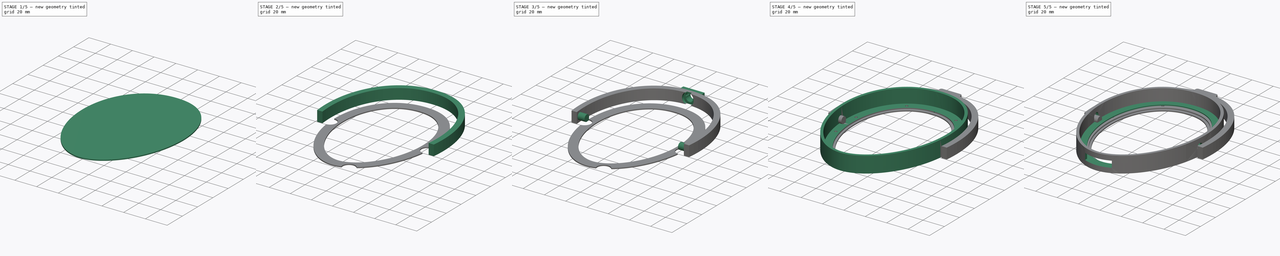
[diagram: build sequence overview — one tinted view per stage of 5, left to right]
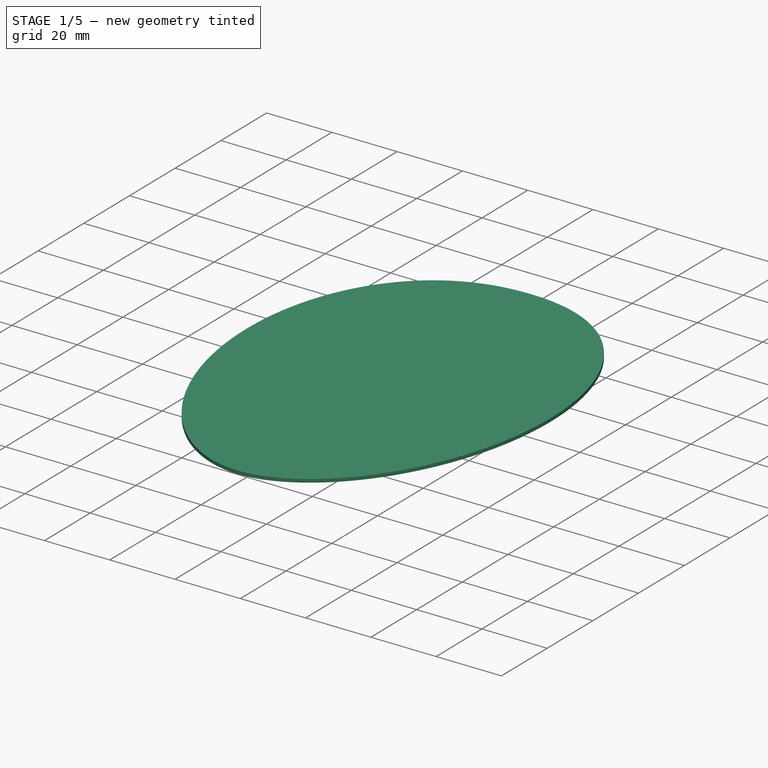
[diagram: stage 1 of 5 — iso view after this stage's code; geometry added in this stage tinted green]
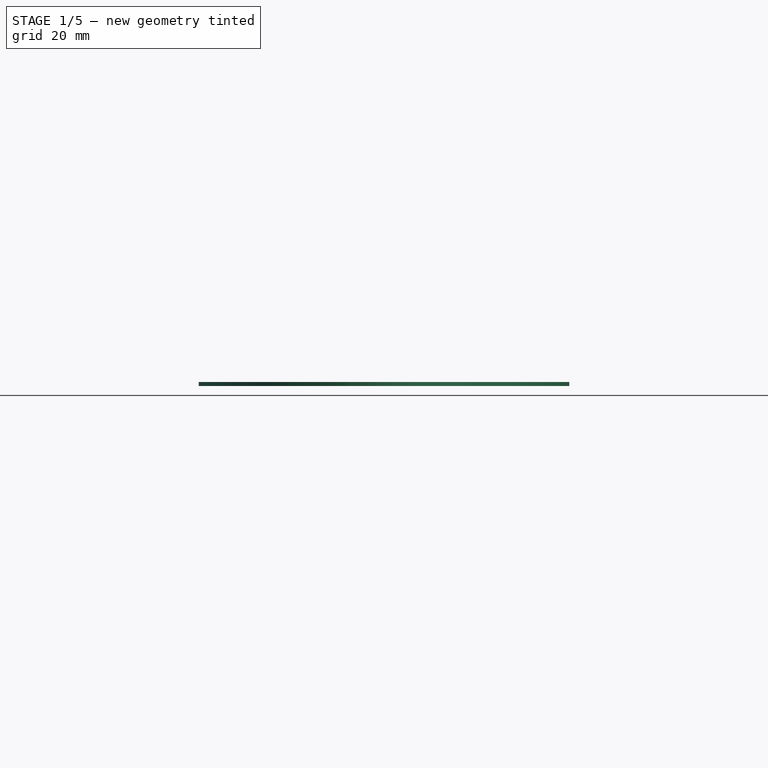
[diagram: stage 1 of 5 — front view after this stage's code; geometry added in this stage tinted green]
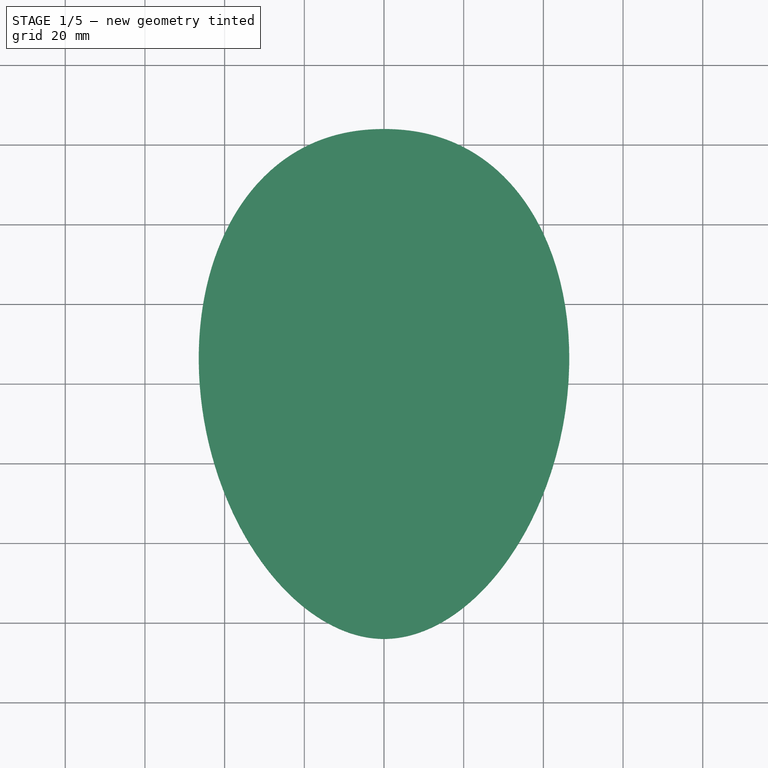
[diagram: stage 1 of 5 — top view after this stage's code; geometry added in this stage tinted green]
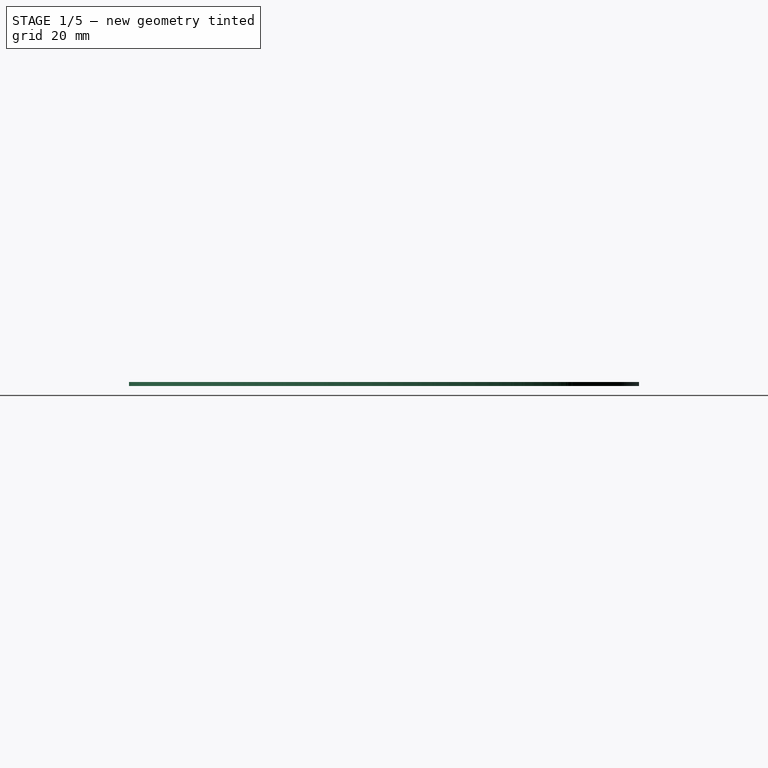
[diagram: stage 1 of 5 — right view after this stage's code; geometry added in this stage tinted green]
FCSTD DOCUMENT  (FreeCAD 1.0R39285 (Git))
Label: jade-ii
License: All rights reserved
LicenseURL: https://en.wikipedia.org/wiki/All_rights_reserved
objects: Sketcher::SketchObject×21, PartDesign::Pocket×11, PartDesign::Pad×7, PartDesign::Body×5, PartDesign::Plane×3, App::Link×2, PartDesign::Hole×2, PartDesign::Fillet×1
note: 113 computed .brp shape members not serialized (recipe doc carries the construction recipe); baked Part::Feature solids carry a one-line shape summary decoded from their .brp

FEATURE [PartDesign::Body] Body002  label="Earpad Mount"
  AllowCompound = false
  Group = -> [Sketch008,Pad003,Sketch009,Pocket004]
  Origin = -> Origin002
  Placement = pos=(0,0,11) rot=(0,0,1;0rad)
  Tip = -> Pocket004
FEATURE [Sketcher::SketchObject] Sketch010
  ArcFitTolerance = 1e-06
  AttachmentSupport = -> [XY_Plane003]
  FullyConstrained = false
  MakeInternals = false
  MapMode = 5
  sketch-geometry (19):
    g0: BSplineCurve PolesCount=11 KnotsCount=3 Degree=5 IsPeriodic=0
    g1: LineSegment [constr] StartX=-2.09149e-05 StartY=-64 StartZ=0 EndX=2.09149e-05 EndY=64 EndZ=0
    g2: LineSegment [constr] StartX=46.5 StartY=-1.5196e-05 StartZ=0 EndX=-46.5 EndY=1.5196e-05 EndZ=0
    g3: GeomPoint [constr] X=-1.43706e-05 Y=-43.9744 Z=0
    g4: GeomPoint [constr] X=1.43706e-05 Y=43.9744 Z=0
    g5-g11: Circle [constr] x7 (B-spline internal-alignment scaffolding for g0; pole/knot coordinates omitted)
    g12: GeomPoint [constr] X=-2.09149e-05 Y=-64 Z=0
    g13: GeomPoint [constr] X=2.09149e-05 Y=64 Z=0
    g14: GeomPoint [constr] X=-2.09149e-05 Y=-64 Z=0
    g15-g18: Circle [constr] x4 (B-spline internal-alignment scaffolding for g0; pole/knot coordinates omitted)
  constraints (6):
    c: Angle(g1) = 1.5708
    c: InternalAlignment(g5-g18 -> g0) x14
    c: DistanceY(g8,g15) = 0
    c: DistanceY(g7,g16) = 0
    c: DistanceY(g16,g-1) = 19.2
    c: DistanceY(g-1,g15) = 44.8
FEATURE [PartDesign::Pad] Pad004
  Direction = (0,0,1)
  Length = 1
  Length2 = 10
  Profile = -> Sketch010
  ReferenceAxis = -> Sketch010 [N_Axis]
  Refine = true
  Suppressed = false
  Type = 0
FEATURE [PartDesign::Body] Body003  label="PCB Stator"
  AllowCompound = false
  Group = -> [Sketch010,Pad004,Sketch011,Pocket005,Sketch012,Hole001,Sketch013,Pocket010]
  Origin = -> Origin003
  Placement = pos=(0,0,3) rot=(0,0,1;0rad)
  Tip = -> Pocket010
FEATURE [Sketcher::SketchObject] Sketch021
  ArcFitTolerance = 1e-06
  AttachmentSupport = -> [XY_Plane005]
  FullyConstrained = false
  MakeInternals = false
  MapMode = 5
  sketch-geometry (19):
    g0: BSplineCurve PolesCount=11 KnotsCount=3 Degree=5 IsPeriodic=0
    g1: LineSegment [constr] StartX=-2.09149e-05 StartY=-64 StartZ=0 EndX=2.09149e-05 EndY=64 EndZ=0
    g2: LineSegment [constr] StartX=46.5 StartY=-1.5196e-05 StartZ=0 EndX=-46.5 EndY=1.5196e-05 EndZ=0
    g3: GeomPoint [constr] X=-1.43706e-05 Y=-43.9744 Z=0
    g4: GeomPoint [constr] X=1.43706e-05 Y=43.9744 Z=0
    g5-g11: Circle [constr] x7 (B-spline internal-alignment scaffolding for g0; pole/knot coordinates omitted)
    g12: GeomPoint [constr] X=-2.09149e-05 Y=-64 Z=0
    g13: GeomPoint [constr] X=2.09149e-05 Y=64 Z=0
    g14: GeomPoint [constr] X=-2.09149e-05 Y=-64 Z=0
    g15-g18: Circle [constr] x4 (B-spline internal-alignment scaffolding for g0; pole/knot coordinates omitted)
  constraints (6):
    c: Angle(g1) = 1.5708
    c: InternalAlignment(g5-g18 -> g0) x14
    c: DistanceY(g8,g15) = 0
    c: DistanceY(g7,g16) = 0
    c: DistanceY(g16,g-1) = 19.2
    c: DistanceY(g-1,g15) = 44.8
FEATURE [PartDesign::Pad] Pad008
  Direction = (0,0,1)
  Length = 1
  Length2 = 10
  Profile = -> Sketch021
  ReferenceAxis = -> Sketch021 [N_Axis]
  Refine = true
  Suppressed = false
  Type = 0
FEATURE [Sketcher::SketchObject] Sketch022
  ArcFitTolerance = 1e-06
  AttachmentSupport = -> [Pad008]
  FullyConstrained = true
  MakeInternals = false
  MapMode = 5
  Placement = pos=(0,0,1) rot=(0,0,1;0rad)
  sketch-geometry (4):
    g0: Circle CenterX=-46.25 CenterY=0 CenterZ=0 NormalX=0 NormalY=0 NormalZ=1 AngleXU=0 Radius=6
    g1: Circle CenterX=46.25 CenterY=0 CenterZ=0 NormalX=0 NormalY=0 NormalZ=1 AngleXU=0 Radius=6
    g2: Circle CenterX=14 CenterY=-60.5 CenterZ=0 NormalX=0 NormalY=0 NormalZ=1 AngleXU=0 Radius=6
    g3: Circle CenterX=-14 CenterY=-60.5 CenterZ=0 NormalX=0 NormalY=0 NormalZ=1 AngleXU=0 Radius=6
  constraints (12):
    c: Diameter(g0) = 12
    c: PointOnObject(g0,g-1)
    c: Diameter(g1) = 12
    c: PointOnObject(g1,g-1)
    c: DistanceX(g-1,g1) = 46.25
    c: DistanceX(g0,g-1) = 46.25
    c: Diameter(g2) = 12
    c: DistanceY(g2,g-1) = 60.5
    c: Diameter(g3) = 12
    c: DistanceY(g3,g-1) = 60.5
    c: DistanceX(g-1,g2) = 14
    c: DistanceX(g3,g-1) = 14
FEATURE [PartDesign::Pocket] Pocket011
  BaseFeature = -> Pad008
  Direction = (0,0,-1)
  Length = 5
  Length2 = 5
  Profile = -> Sketch022
  ReferenceAxis = -> Sketch022 [N_Axis]
  Refine = true
  Suppressed = false
  Type = 0
FEATURE [Sketcher::SketchObject] Sketch024  label="Copper Outline001"
  ArcFitTolerance = 1e-06
  FullyConstrained = false
  MakeInternals = false
  MapMode = 5
  Placement = pos=(0,0,1) rot=(0,0,1;0rad)
  sketch-geometry (19):
    g0: BSplineCurve PolesCount=11 KnotsCount=3 Degree=5 IsPeriodic=0
    g1: LineSegment [constr] StartX=-1.79737e-05 StartY=-55 StartZ=0 EndX=1.79737e-05 EndY=55 EndZ=0
    g2: LineSegment [constr] StartX=38 StartY=-1.24182e-05 StartZ=0 EndX=-38 EndY=1.24182e-05 EndZ=0
    g3: GeomPoint [constr] X=-1.2994e-05 Y=-39.7618 Z=0
    g4: GeomPoint [constr] X=1.2994e-05 Y=39.7618 Z=0
    g5-g11: Circle [constr] x7 (B-spline internal-alignment scaffolding for g0; pole/knot coordinates omitted)
    g12: GeomPoint [constr] X=-1.79737e-05 Y=-55 Z=0
    g13: GeomPoint [constr] X=1.79737e-05 Y=55 Z=0
    g14: GeomPoint [constr] X=-1.79737e-05 Y=-55 Z=0
    g15-g18: Circle [constr] x4 (B-spline internal-alignment scaffolding for g0; pole/knot coordinates omitted)
  constraints (6):
    c: Angle(g1) = 1.5708
    c: InternalAlignment(g5-g18 -> g0) x14
    c: DistanceY(g8,g15) = 0
    c: DistanceY(g7,g16) = 0
    c: DistanceY(g16,g-1) = 16.5
    c: DistanceY(g-1,g15) = 38.5
FEATURE [PartDesign::Pocket] Pocket012
  BaseFeature = -> Pocket011
  Direction = (0,0,-1)
  Length = 5
  Length2 = 5
  Profile = -> Sketch024
  ReferenceAxis = -> Sketch024 [N_Axis]
  Refine = true
  Suppressed = false
  Type = 1
FEATURE [App::Link] Link001  label="LINK - PCB Spacer"
  LinkPlacement = pos=(0,0,5) rot=(0,0,1;0rad)
  LinkedObject = -> Body005
  Placement = pos=(0,0,5) rot=(0,0,1;0rad)
FEATURE [Sketcher::SketchObject] Sketch025  label="Stator Holes002"
  ArcFitTolerance = 1e-06
  AttachmentSupport = -> [Pocket011]
  FullyConstrained = true
  MakeInternals = false
  MapMode = 5
  Placement = pos=(0,0,1) rot=(0,0,1;0rad)
  sketch-geometry (12):
    g0: Circle CenterX=-41 CenterY=-15 CenterZ=0 NormalX=0 NormalY=0 NormalZ=1 AngleXU=0 Radius=1.5
    g1: Circle CenterX=41 CenterY=-15 CenterZ=0 NormalX=0 NormalY=0 NormalZ=1 AngleXU=0 Radius=1.5
    g2: Circle CenterX=-23 CenterY=-50 CenterZ=0 NormalX=0 NormalY=0 NormalZ=1 AngleXU=0 Radius=1.5
    g3: Circle CenterX=23 CenterY=-50 CenterZ=0 NormalX=0 NormalY=0 NormalZ=1 AngleXU=0 Radius=1.5
    g4: Circle CenterX=-43 CenterY=15 CenterZ=0 NormalX=0 NormalY=0 NormalZ=1 AngleXU=0 Radius=1.5
    g5: Circle CenterX=43 CenterY=15 CenterZ=0 NormalX=0 NormalY=0 NormalZ=1 AngleXU=0 Radius=1.5
    g6: Circle CenterX=-23 CenterY=54 CenterZ=0 NormalX=0 NormalY=0 NormalZ=1 AngleXU=0 Radius=1.5
    g7: Circle CenterX=23 CenterY=54 CenterZ=0 NormalX=0 NormalY=0 NormalZ=1 AngleXU=0 Radius=1.5
    g8: Circle CenterX=-34 CenterY=-34 CenterZ=0 NormalX=0 NormalY=0 NormalZ=1 AngleXU=0 Radius=1.5
    g9: Circle CenterX=34 CenterY=-34 CenterZ=0 NormalX=0 NormalY=0 NormalZ=1 AngleXU=0 Radius=1.5
    g10: Circle CenterX=-38 CenterY=34 CenterZ=0 NormalX=0 NormalY=0 NormalZ=1 AngleXU=0 Radius=1.5
    g11: Circle CenterX=38 CenterY=34 CenterZ=0 NormalX=0 NormalY=0 NormalZ=1 AngleXU=0 Radius=1.5
  constraints (36):
    c: Diameter(g0) = 3
    c: Diameter(g1) = 3
    c: Diameter(g2) = 3
    c: Diameter(g3) = 3
    c: Diameter(g4) = 3
    c: Diameter(g5) = 3
    c: Diameter(g6) = 3
    c: Diameter(g7) = 3
    c: DistanceY(g-1,g4) = 15
    c: DistanceY(g0,g-1) = 15
    c: DistanceX(g0,g-1) = 41
    c: DistanceX(g-1,g1) = 41
    c: DistanceY(g0,g1) = 0
    c: DistanceY(g4,g5) = 0
    c: DistanceX(g4,g-1) = 43
    c: DistanceX(g-1,g5) = 43
    c: DistanceY(g3,g2) = 0
    c: DistanceX(g2,g-1) = 23
    c: DistanceY(g2,g-1) = 50
    c: DistanceX(g-1,g3) = 23
    c: DistanceY(g6,g7) = 0
    c: DistanceY(g-1,g6) = 54
    c: DistanceX(g6,g-1) = 23
    c: DistanceX(g-1,g7) = 23
    c: Diameter(g8) = 3
    c: Diameter(g9) = 3
    c: Diameter(g10) = 3
    c: Diameter(g11) = 3
    c: DistanceY(g11,g10) = 0
    c: DistanceY(g-1,g10) = 34
    c: DistanceX(g10,g-1) = 38
    c: DistanceX(g-1,g11) = 38
    c: DistanceY(g8,g-1) = 34
    c: DistanceY(g8,g9) = 0
    c: DistanceX(g8,g-1) = 34
    c: DistanceX(g-1,g9) = 34
FEATURE [PartDesign::Body] Body005  label="PCB Spacer"
  AllowCompound = false
  Group = -> [Sketch021,Pad008,Sketch022,Pocket011,Sketch024,Pocket012,Sketch025]
  Origin = -> Origin005
  Placement = pos=(0,0,4) rot=(0,0,1;0rad)
  Tip = -> Pocket012
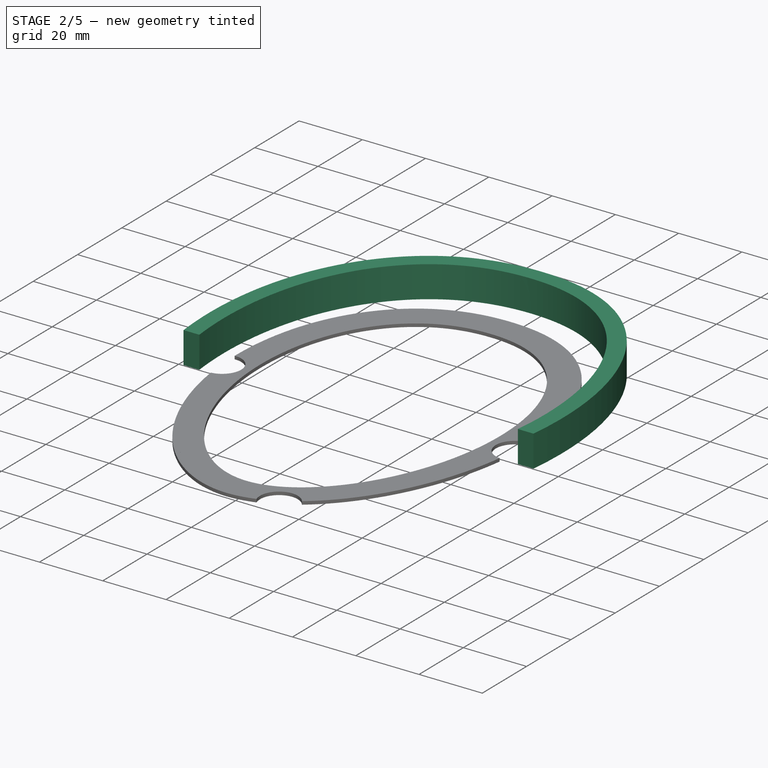
[diagram: stage 2 of 5 — iso view after this stage's code; geometry added in this stage tinted green]
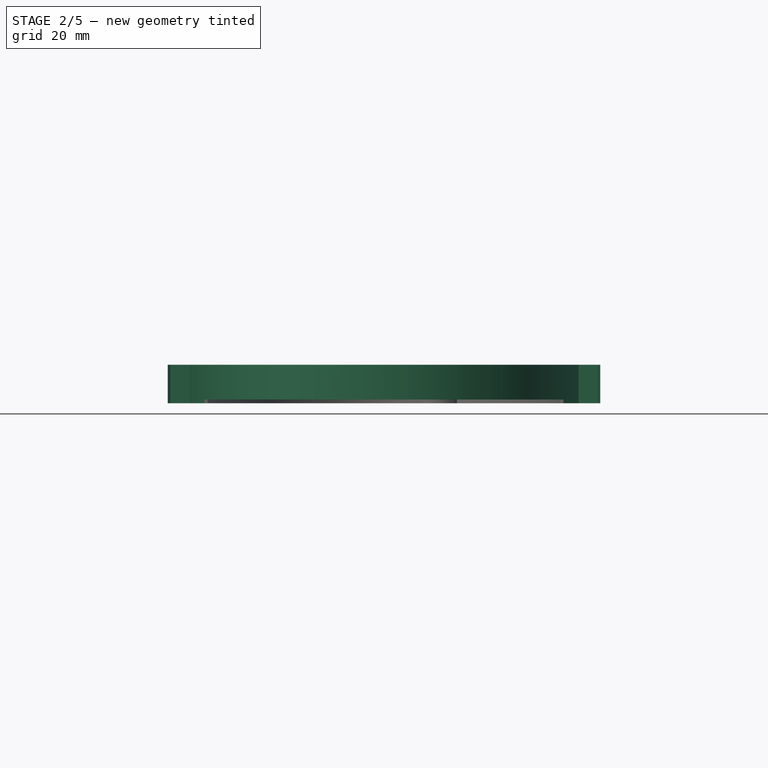
[diagram: stage 2 of 5 — front view after this stage's code; geometry added in this stage tinted green]
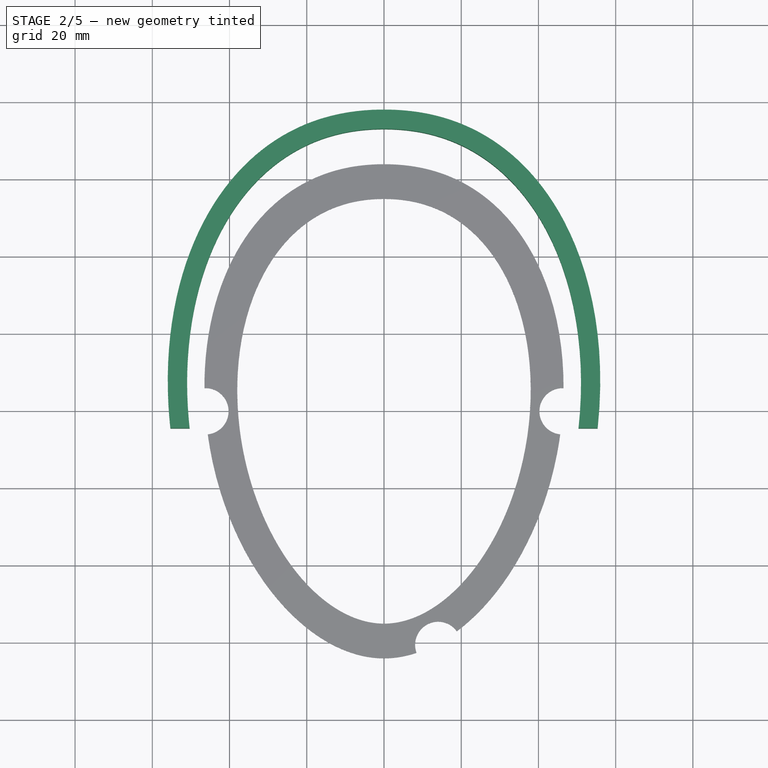
[diagram: stage 2 of 5 — top view after this stage's code; geometry added in this stage tinted green]
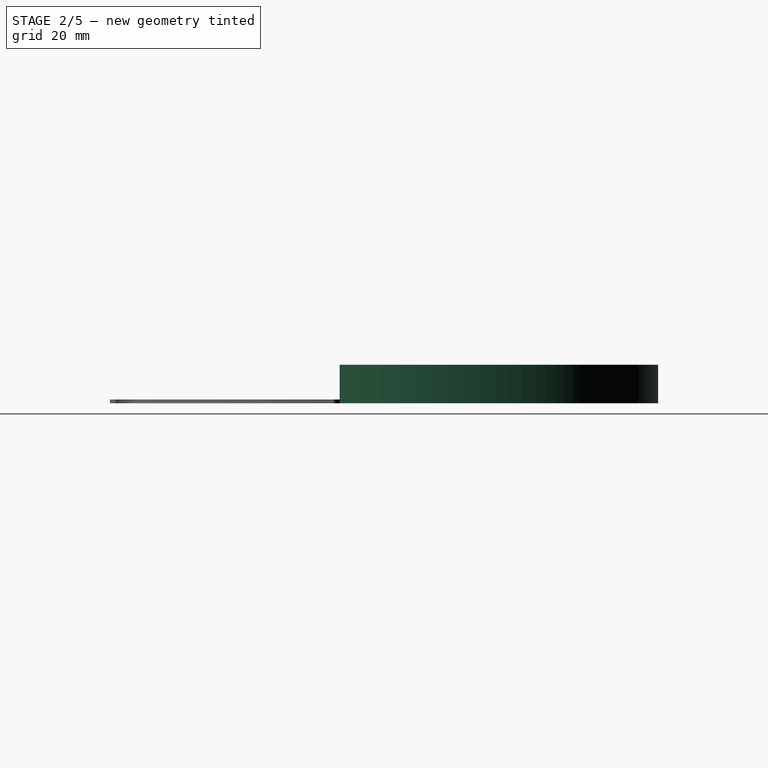
[diagram: stage 2 of 5 — right view after this stage's code; geometry added in this stage tinted green]
FEATURE [Sketcher::SketchObject] Sketch011
  ArcFitTolerance = 1e-06
  AttachmentSupport = -> [Pad004]
  FullyConstrained = false
  MakeInternals = false
  MapMode = 5
  Placement = pos=(0,0,1) rot=(0,0,1;0rad)
  sketch-geometry (4):
    g0: Circle CenterX=-46.25 CenterY=0 CenterZ=0 NormalX=0 NormalY=0 NormalZ=1 AngleXU=0 Radius=6
    g1: Circle CenterX=46.25 CenterY=0 CenterZ=0 NormalX=0 NormalY=0 NormalZ=1 AngleXU=0 Radius=6
    g2: Circle CenterX=0 CenterY=-63.5 CenterZ=0 NormalX=0 NormalY=0 NormalZ=1 AngleXU=0 Radius=6
    g3: Circle CenterX=14.0641 CenterY=-60.5 CenterZ=0 NormalX=0 NormalY=0 NormalZ=1 AngleXU=0 Radius=6
  constraints (11):
    c: Diameter(g0) = 12
    c: PointOnObject(g0,g-1)
    c: Diameter(g1) = 12
    c: PointOnObject(g1,g-1)
    c: DistanceX(g-1,g1) = 46.25
    c: DistanceX(g0,g-1) = 46.25
    c: Diameter(g2) = 12
    c: Diameter(g3) = 12
    c: DistanceX(g-1,g2) = 0
    c: DistanceY(g2,g-1) = 63.5
    c: DistanceY(g3,g-1) = 60.5
FEATURE [PartDesign::Pocket] Pocket005
  BaseFeature = -> Pad004
  Direction = (0,0,-1)
  Length = 5
  Length2 = 5
  Profile = -> Sketch011
  ReferenceAxis = -> Sketch011 [N_Axis]
  Refine = true
  Suppressed = false
  Type = 0
FEATURE [Sketcher::SketchObject] Sketch012  label="Stator Holes"
  ArcFitTolerance = 1e-06
  AttachmentSupport = -> [Pocket005]
  FullyConstrained = true
  MakeInternals = false
  MapMode = 5
  Placement = pos=(0,0,1) rot=(0,0,1;0rad)
  sketch-geometry (12):
    g0: Circle CenterX=-41 CenterY=-15 CenterZ=0 NormalX=0 NormalY=0 NormalZ=1 AngleXU=0 Radius=1.5
    g1: Circle CenterX=41 CenterY=-15 CenterZ=0 NormalX=0 NormalY=0 NormalZ=1 AngleXU=0 Radius=1.5
    g2: Circle CenterX=-23 CenterY=-50 CenterZ=0 NormalX=0 NormalY=0 NormalZ=1 AngleXU=0 Radius=1.5
    g3: Circle CenterX=23 CenterY=-50 CenterZ=0 NormalX=0 NormalY=0 NormalZ=1 AngleXU=0 Radius=1.5
    g4: Circle CenterX=-43 CenterY=15 CenterZ=0 NormalX=0 NormalY=0 NormalZ=1 AngleXU=0 Radius=1.5
    g5: Circle CenterX=43 CenterY=15 CenterZ=0 NormalX=0 NormalY=0 NormalZ=1 AngleXU=0 Radius=1.5
    g6: Circle CenterX=-23 CenterY=54 CenterZ=0 NormalX=0 NormalY=0 NormalZ=1 AngleXU=0 Radius=1.5
    g7: Circle CenterX=23 CenterY=54 CenterZ=0 NormalX=0 NormalY=0 NormalZ=1 AngleXU=0 Radius=1.5
    g8: Circle CenterX=-34 CenterY=-34 CenterZ=0 NormalX=0 NormalY=0 NormalZ=1 AngleXU=0 Radius=1.5
    g9: Circle CenterX=34 CenterY=-34 CenterZ=0 NormalX=0 NormalY=0 NormalZ=1 AngleXU=0 Radius=1.5
    g10: Circle CenterX=-38 CenterY=34 CenterZ=0 NormalX=0 NormalY=0 NormalZ=1 AngleXU=0 Radius=1.5
    g11: Circle CenterX=38 CenterY=34 CenterZ=0 NormalX=0 NormalY=0 NormalZ=1 AngleXU=0 Radius=1.5
  constraints (36):
    c: Diameter(g0) = 3
    c: Diameter(g1) = 3
    c: Diameter(g2) = 3
    c: Diameter(g3) = 3
    c: Diameter(g4) = 3
    c: Diameter(g5) = 3
    c: Diameter(g6) = 3
    c: Diameter(g7) = 3
    c: DistanceY(g-1,g4) = 15
    c: DistanceY(g0,g-1) = 15
    c: DistanceX(g0,g-1) = 41
    c: DistanceX(g-1,g1) = 41
    c: DistanceY(g0,g1) = 0
    c: DistanceY(g4,g5) = 0
    c: DistanceX(g4,g-1) = 43
    c: DistanceX(g-1,g5) = 43
    c: DistanceY(g3,g2) = 0
    c: DistanceX(g2,g-1) = 23
    c: DistanceY(g2,g-1) = 50
    c: DistanceX(g-1,g3) = 23
    c: DistanceY(g6,g7) = 0
    c: DistanceY(g-1,g6) = 54
    c: DistanceX(g6,g-1) = 23
    c: DistanceX(g-1,g7) = 23
    c: Diameter(g8) = 3
    c: Diameter(g9) = 3
    c: Diameter(g10) = 3
    c: Diameter(g11) = 3
    c: DistanceY(g11,g10) = 0
    c: DistanceY(g-1,g10) = 34
    c: DistanceX(g10,g-1) = 38
    c: DistanceX(g-1,g11) = 38
    c: DistanceY(g8,g-1) = 34
    c: DistanceY(g8,g9) = 0
    c: DistanceX(g8,g-1) = 34
    c: DistanceX(g-1,g9) = 34
FEATURE [PartDesign::Hole] Hole001
  BaseFeature = -> Pocket005
  CustomThreadClearance = 0
  Depth = 25
  DepthType = 0
  Diameter = 2.4
  DrillForDepth = false
  DrillPoint = 1
  DrillPointAngle = 118
  HoleCutCountersinkAngle = 90
  HoleCutCustomValues = false
  HoleCutDepth = 0
  HoleCutDiameter = 6.1
  HoleCutType = 0
  ModelThread = false
  Profile = -> Sketch012
  Refine = true
  Suppressed = false
  Tapered = false
  TaperedAngle = 90
  ThreadClass = 0
  ThreadDepth = 25
  ThreadDepthType = 0
  ThreadDirection = 0
  ThreadFit = 0
  ThreadSize = 6
  ThreadType = 1
  Threaded = false
  UseCustomThreadClearance = false
FEATURE [Sketcher::SketchObject] Sketch013  label="Copper Outline"
  ArcFitTolerance = 1e-06
  AttachmentSupport = -> [Hole001]
  FullyConstrained = false
  MakeInternals = false
  MapMode = 5
  Placement = pos=(0,0,1) rot=(0,0,1;0rad)
  sketch-geometry (19):
    g0: BSplineCurve PolesCount=11 KnotsCount=3 Degree=5 IsPeriodic=0
    g1: LineSegment [constr] StartX=-1.79737e-05 StartY=-55 StartZ=0 EndX=1.79737e-05 EndY=55 EndZ=0
    g2: LineSegment [constr] StartX=38 StartY=-1.24182e-05 StartZ=0 EndX=-38 EndY=1.24182e-05 EndZ=0
    g3: GeomPoint [constr] X=-1.2994e-05 Y=-39.7618 Z=0
    g4: GeomPoint [constr] X=1.2994e-05 Y=39.7618 Z=0
    g5-g11: Circle [constr] x7 (B-spline internal-alignment scaffolding for g0; pole/knot coordinates omitted)
    g12: GeomPoint [constr] X=-1.79737e-05 Y=-55 Z=0
    g13: GeomPoint [constr] X=1.79737e-05 Y=55 Z=0
    g14: GeomPoint [constr] X=-1.79737e-05 Y=-55 Z=0
    g15-g18: Circle [constr] x4 (B-spline internal-alignment scaffolding for g0; pole/knot coordinates omitted)
  constraints (6):
    c: Angle(g1) = 1.5708
    c: InternalAlignment(g5-g18 -> g0) x14
    c: DistanceY(g8,g15) = 0
    c: DistanceY(g7,g16) = 0
    c: DistanceY(g16,g-1) = 16.5
    c: DistanceY(g-1,g15) = 38.5
FEATURE [Sketcher::SketchObject] Sketch014
  ArcFitTolerance = 1e-06
  AttachmentSupport = -> [XY_Plane004]
  FullyConstrained = false
  MakeInternals = false
  MapMode = 5
  sketch-geometry (44):
    g0: BSplineCurve PolesCount=11 KnotsCount=3 Degree=5 IsPeriodic=0
    g1: LineSegment [constr] StartX=-2.3856e-05 StartY=-73 StartZ=0 EndX=2.3856e-05 EndY=73 EndZ=0
    g2: LineSegment [constr] StartX=51 StartY=-1.66665e-05 StartZ=0 EndX=-51 EndY=1.66665e-05 EndZ=0
    g3: GeomPoint [constr] X=-1.70686e-05 Y=-52.2303 Z=0
    g4: GeomPoint [constr] X=1.70686e-05 Y=52.2303 Z=0
    g5: BSplineCurve PolesCount=11 KnotsCount=3 Degree=5 IsPeriodic=0
    g6: LineSegment [constr] StartX=-2.549e-05 StartY=-78 StartZ=0 EndX=2.549e-05 EndY=78 EndZ=0
    g7: LineSegment [constr] StartX=56 StartY=-1.83005e-05 StartZ=0 EndX=-56 EndY=1.83005e-05 EndZ=0
    g8: GeomPoint [constr] X=-1.77435e-05 Y=-54.2955 Z=0
    g9: GeomPoint [constr] X=1.77435e-05 Y=54.2955 Z=0
    g10: GeomPoint X=-55.312 Y=-4.5 Z=0
    g11: GeomPoint X=-50.3323 Y=-4.5 Z=0
    g12: GeomPoint X=50.3772 Y=-4.5 Z=0
    g13: GeomPoint X=55.3208 Y=-4.5 Z=0
    g14: LineSegment StartX=50.3772 StartY=-4.5 StartZ=0 EndX=55.3208 EndY=-4.5 EndZ=0
    g15: LineSegment StartX=-55.312 StartY=-4.5 StartZ=0 EndX=-50.3323 EndY=-4.5 EndZ=0
    g16-g26: Circle [constr] x11 (B-spline internal-alignment scaffolding for g0; pole/knot coordinates omitted)
    g27: GeomPoint [constr] X=50.3772 Y=-4.5 Z=0
    g28: GeomPoint [constr] X=2.38603e-05 Y=73 Z=0
    g29: GeomPoint [constr] X=-50.3323 Y=-4.5 Z=0
    g30-g40: Circle [constr] x11 (B-spline internal-alignment scaffolding for g5; pole/knot coordinates omitted)
    g41: GeomPoint [constr] X=55.3208 Y=-4.5 Z=0
    g42: GeomPoint [constr] X=2.549e-05 Y=78 Z=0
    g43: GeomPoint [constr] X=-55.312 Y=-4.5 Z=0
  constraints (20):
    c: Angle(g1) = 1.5708
    c: Angle(g6) = 1.5708
    c: PointOnObject(g10,g5)
    c: PointOnObject(g11,g0)
    c: DistanceY(g11,g10) = 0
    c: DistanceY(g11,g-1) = 4.5
    c: PointOnObject(g12,g0)
    c: PointOnObject(g13,g5)
    c: DistanceY(g13,g12) = 0
    c: DistanceY(g12,g-1) = 4.5
    c: Coincident(g14,g12)
    c: Coincident(g14,g13)
    c: Coincident(g15,g10)
    c: Coincident(g15,g11)
    c: PointOnObject(g0,g15)
    c: PointOnObject(g0,g14)
    c: InternalAlignment(g16-g29 -> g0) x14
    c: PointOnObject(g5,g14)
    c: PointOnObject(g5,g15)
    c: InternalAlignment(g30-g43 -> g5) x14
FEATURE [PartDesign::Pad] Pad005
  Direction = (0,0,1)
  Length = 10
  Length2 = 10
  Profile = -> Sketch014
  ReferenceAxis = -> Sketch014 [N_Axis]
  Refine = true
  Suppressed = false
  Type = 0
FEATURE [PartDesign::Body] Body004  label="Yoke"
  AllowCompound = false
  Group = -> [Sketch014,Pad005,DatumPlane002,Sketch015,Pad006,Sketch016,Pocket006,DatumPlane003,Sketch017,Pad007,Sketch018,Pocket007,Sketch019,Pocket008,Fillet]
  Origin = -> Origin004
  Placement = pos=(0,0,2.5) rot=(0,0,1;0rad)
  Tip = -> Fillet
FEATURE [PartDesign::Pocket] Pocket010
  BaseFeature = -> Hole001
  Direction = (0,0,-1)
  Length = 5
  Length2 = 5
  Profile = -> Sketch013
  ReferenceAxis = -> Sketch013 [N_Axis]
  Refine = true
  Suppressed = false
  Type = 1
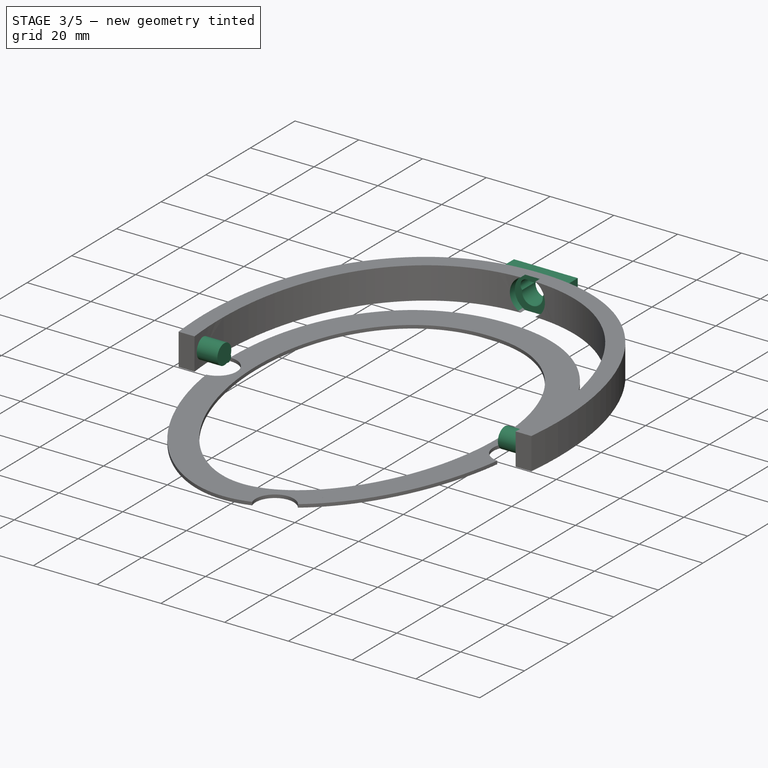
[diagram: stage 3 of 5 — iso view after this stage's code; geometry added in this stage tinted green]
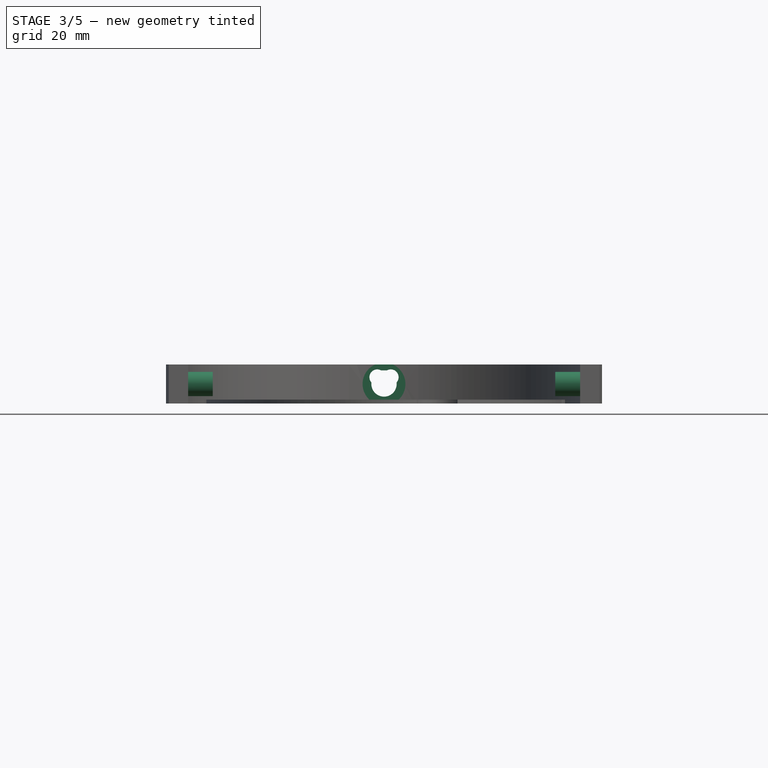
[diagram: stage 3 of 5 — front view after this stage's code; geometry added in this stage tinted green]
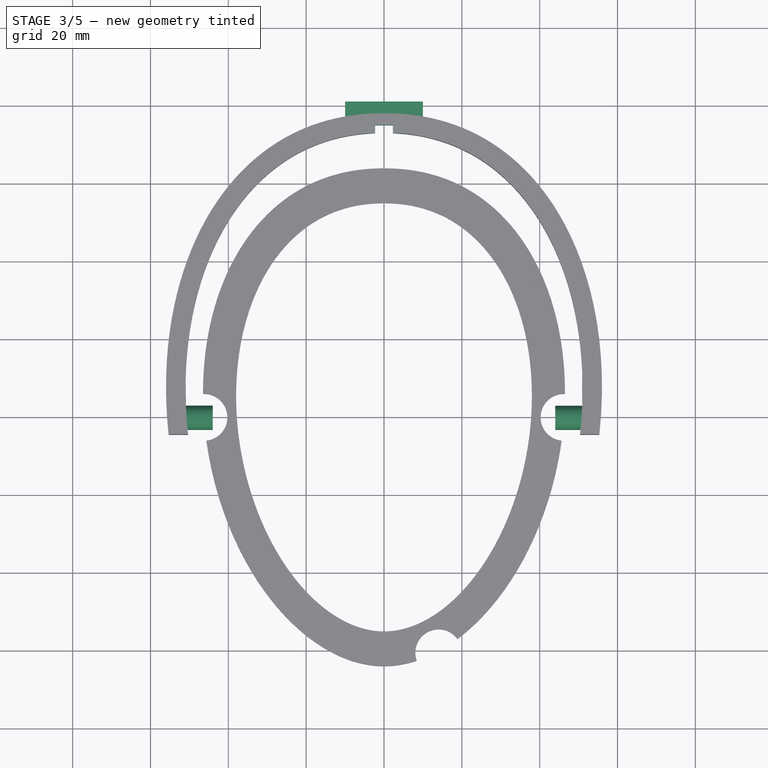
[diagram: stage 3 of 5 — top view after this stage's code; geometry added in this stage tinted green]
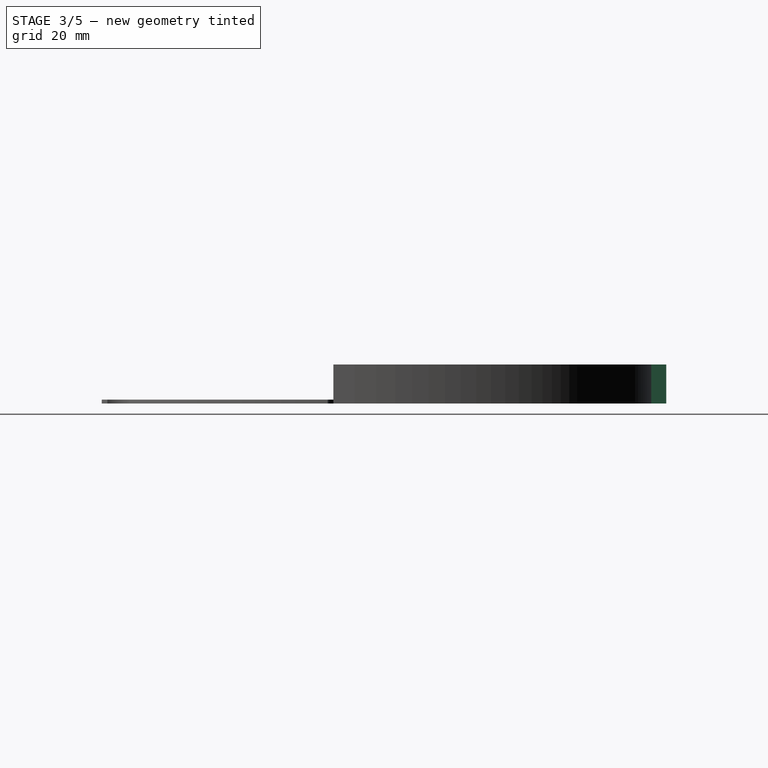
[diagram: stage 3 of 5 — right view after this stage's code; geometry added in this stage tinted green]
FEATURE [PartDesign::Plane] DatumPlane002
  AttachmentOffset = pos=(0,-55,0) rot=(1,0,0;1.5708rad)
  AttachmentSupport = -> [Pad005]
  Length = 120.573
  MapMode = 45
  Placement = pos=(55.0012,46.0036,5) rot=(0.577368,0.577341,0.577341;2.09437rad)
  ResizeMode = 0
  Width = 64.561
FEATURE [Sketcher::SketchObject] Sketch015
  ArcFitTolerance = 1e-06
  AttachmentOffset = pos=(0,0,0) rot=(0,0,1;-1.5708rad)
  AttachmentSupport = -> [DatumPlane002]
  FullyConstrained = true
  MakeInternals = false
  MapMode = 5
  Placement = pos=(55.0012,46.0036,5) rot=(-2.3e-05,-1,2.3e-05;4.71239rad)
  sketch-geometry (2):
    g0: Circle CenterX=0 CenterY=-46.2 CenterZ=0 NormalX=0 NormalY=0 NormalZ=1 AngleXU=0 Radius=3.125
    g1: Circle CenterX=1.8 CenterY=-44.4 CenterZ=0 NormalX=0 NormalY=0 NormalZ=1 AngleXU=0 Radius=1.25
  constraints (6):
    c: Diameter(g0) = 6.25
    c: PointOnObject(g0,g-2)
    c: DistanceY(g0,g-1) = 46.2
    c: Diameter(g1) = 2.5
    c: DistanceY(g0,g1) = 1.8
    c: DistanceX(g0,g1) = 1.8
FEATURE [PartDesign::Pad] Pad006
  BaseFeature = -> Pad005
  Direction = (1,-4.57582e-05,0)
  Length = 110
  Length2 = 10
  Profile = -> Sketch015
  ReferenceAxis = -> Sketch015 [N_Axis]
  Refine = true
  Reversed = true
  Suppressed = false
  Type = 0
FEATURE [Sketcher::SketchObject] Sketch016
  ArcFitTolerance = 1e-06
  AttachmentSupport = -> [Pad006]
  FullyConstrained = true
  MakeInternals = false
  MapMode = 5
  Placement = pos=(0,0,10) rot=(0,0,1;0rad)
  sketch-geometry (5):
    g0: LineSegment StartX=-44 StartY=-5.5 StartZ=0 EndX=44 EndY=-5.5 EndZ=0
    g1: LineSegment StartX=44 StartY=-5.5 StartZ=0 EndX=44 EndY=5.5 EndZ=0
    g2: LineSegment StartX=44 StartY=5.5 StartZ=0 EndX=-44 EndY=5.5 EndZ=0
    g3: LineSegment StartX=-44 StartY=5.5 StartZ=0 EndX=-44 EndY=-5.5 EndZ=0
    g4: GeomPoint [constr] X=0 Y=0 Z=0
  constraints (12):
    c: Coincident(g0,g1)
    c: Coincident(g1,g2)
    c: Coincident(g2,g3)
    c: Coincident(g3,g0)
    c: Horizontal(g0)
    c: Horizontal(g2)
    c: Vertical(g1)
    c: Vertical(g3)
    c: Symmetric(g2,g0,g4)
    c: Distance(g1,g3) = 88
    c: Distance(g0,g2) = 11
    c: Coincident(g4,g-1)
FEATURE [PartDesign::Pocket] Pocket006
  BaseFeature = -> Pad006
  Direction = (0,0,-1)
  Length = 5
  Length2 = 5
  Profile = -> Sketch016
  ReferenceAxis = -> Sketch016 [N_Axis]
  Refine = true
  Suppressed = false
  Type = 1
FEATURE [PartDesign::Plane] DatumPlane003
  AttachmentOffset = pos=(30,0,0) rot=(0,1,0;1.5708rad)
  AttachmentSupport = -> [Pocket006]
  Length = 64.9665
  MapMode = 45
  Placement = pos=(0.00260802,76.0062,5) rot=(-0.577341,0.577368,0.577341;2.09437rad)
  ResizeMode = 0
  Width = 126.965
FEATURE [Sketcher::SketchObject] Sketch017
  ArcFitTolerance = 1e-06
  AttachmentOffset = pos=(0,0,0) rot=(0,0,1;-1.5708rad)
  AttachmentSupport = -> [DatumPlane003]
  FullyConstrained = true
  MakeInternals = false
  MapMode = 5
  Placement = pos=(0.00260802,76.0062,5) rot=(1,-2.3e-05,2.3e-05;4.71239rad)
  sketch-geometry (5):
    g0: LineSegment StartX=-10 StartY=-5 StartZ=0 EndX=10 EndY=-5 EndZ=0
    g1: LineSegment StartX=10 StartY=-5 StartZ=0 EndX=10 EndY=5 EndZ=0
    g2: LineSegment StartX=10 StartY=5 StartZ=0 EndX=-10 EndY=5 EndZ=0
    g3: LineSegment StartX=-10 StartY=5 StartZ=0 EndX=-10 EndY=-5 EndZ=0
    g4: GeomPoint [constr] X=0 Y=0 Z=0
  constraints (12):
    c: Coincident(g0,g1)
    c: Coincident(g1,g2)
    c: Coincident(g2,g3)
    c: Coincident(g3,g0)
    c: Horizontal(g0)
    c: Horizontal(g2)
    c: Vertical(g1)
    c: Vertical(g3)
    c: Symmetric(g2,g0,g4)
    c: Distance(g1,g3) = 20
    c: Distance(g0,g2) = 10
    c: Coincident(g4,g-1)
FEATURE [PartDesign::Pad] Pad007
  BaseFeature = -> Pocket006
  Direction = (4.57582e-05,1,1e-16)
  Length = 5
  Length2 = 10
  Profile = -> Sketch017
  ReferenceAxis = -> Sketch017 [N_Axis]
  Refine = true
  Suppressed = false
  Type = 0
FEATURE [Sketcher::SketchObject] Sketch018
  ArcFitTolerance = 1e-06
  AttachmentOffset = pos=(0,10,0) rot=(0,0,1;3.14159rad)
  AttachmentSupport = -> [Pad007]
  FullyConstrained = false
  MakeInternals = false
  MapMode = 5
  Placement = pos=(0.0037067,81.0062,10) rot=(1,-2.3e-05,2.3e-05;4.71239rad)
  sketch-geometry (4):
    g0: ArcOfCircle CenterX=-1.75 CenterY=3.25 CenterZ=0 NormalX=0 NormalY=0 NormalZ=1 AngleXU=0 Radius=2 StartAngle=2.4004 EndAngle=5.21775
    g1: ArcOfCircle CenterX=1.75 CenterY=3.25 CenterZ=0 NormalX=0 NormalY=0 NormalZ=1 AngleXU=0 Radius=2 StartAngle=4.20703 EndAngle=7.02437
    g2: ArcOfCircle CenterX=0 CenterY=5 CenterZ=0 NormalX=0 NormalY=0 NormalZ=1 AngleXU=0 Radius=3.25 StartAngle=6.1599 EndAngle=9.54806
    g3: LineSegment StartX=-0.781754 StartY=1.5 StartZ=0 EndX=0.781754 EndY=1.5 EndZ=0
  constraints (8):
    c: Diameter(g0) = 4
    c: Diameter(g1) = 4
    c: PointOnObject(g1,g2)
    c: Coincident(g2,g0)
    c: PointOnObject(g2,g1)
    c: Horizontal(g3)
    c: Coincident(g0,g3)
    c: Coincident(g1,g3)
FEATURE [PartDesign::Pocket] Pocket007
  BaseFeature = -> Pad007
  Direction = (-4.57582e-05,-1,1e-16)
  Length = 5
  Length2 = 5
  Profile = -> Sketch018
  ReferenceAxis = -> Sketch018 [N_Axis]
  Refine = true
  Suppressed = false
  Type = 1
FEATURE [Sketcher::SketchObject] Sketch019
  ArcFitTolerance = 1e-06
  AttachmentSupport = -> [XZ_Plane004]
  FullyConstrained = true
  MakeInternals = false
  MapMode = 5
  Placement = pos=(0,0,0) rot=(1,0,0;1.5708rad)
  sketch-geometry (1):
    g0: Circle CenterX=0 CenterY=5 CenterZ=0 NormalX=0 NormalY=0 NormalZ=1 AngleXU=0 Radius=5.5
  constraints (3):
    c: Diameter(g0) = 11
    c: PointOnObject(g0,g-2)
    c: DistanceY(g-1,g0) = 5
FEATURE [PartDesign::Pocket] Pocket008
  BaseFeature = -> Pocket007
  Direction = (0,1,-2e-16)
  Length = 75
  Length2 = 5
  Profile = -> Sketch019
  ReferenceAxis = -> Sketch019 [N_Axis]
  Refine = true
  Suppressed = false
  Type = 0
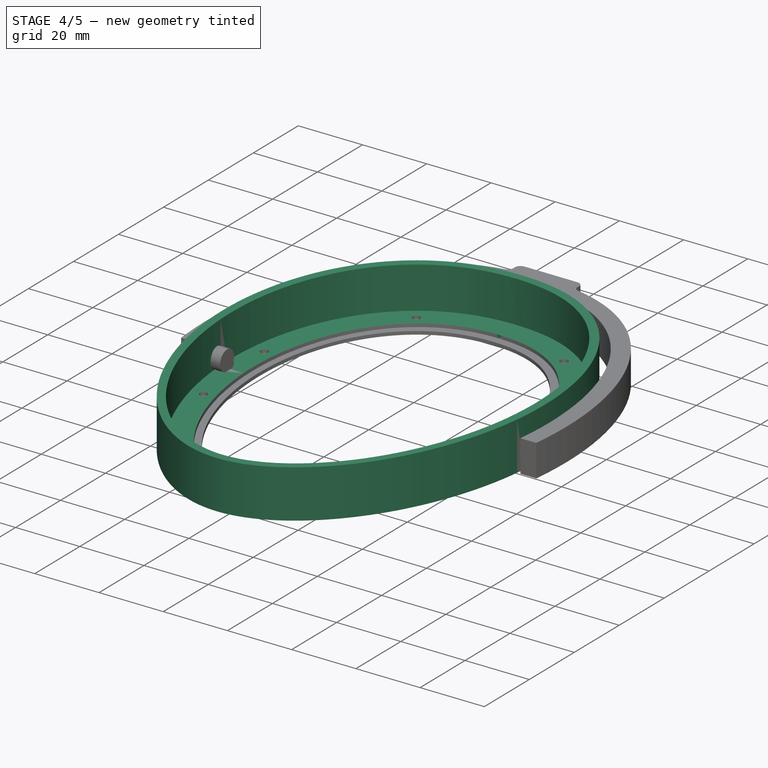
[diagram: stage 4 of 5 — iso view after this stage's code; geometry added in this stage tinted green]
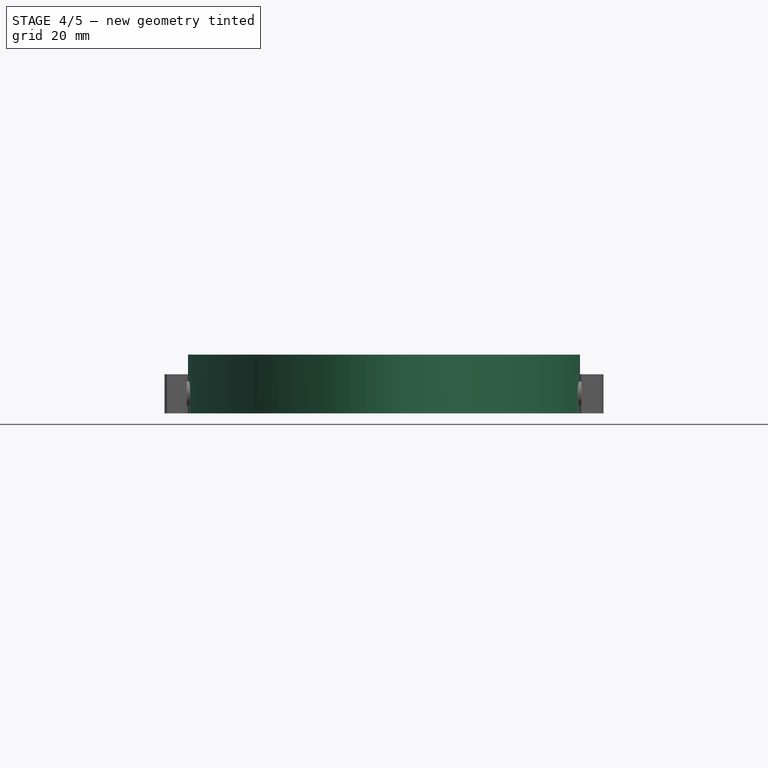
[diagram: stage 4 of 5 — front view after this stage's code; geometry added in this stage tinted green]
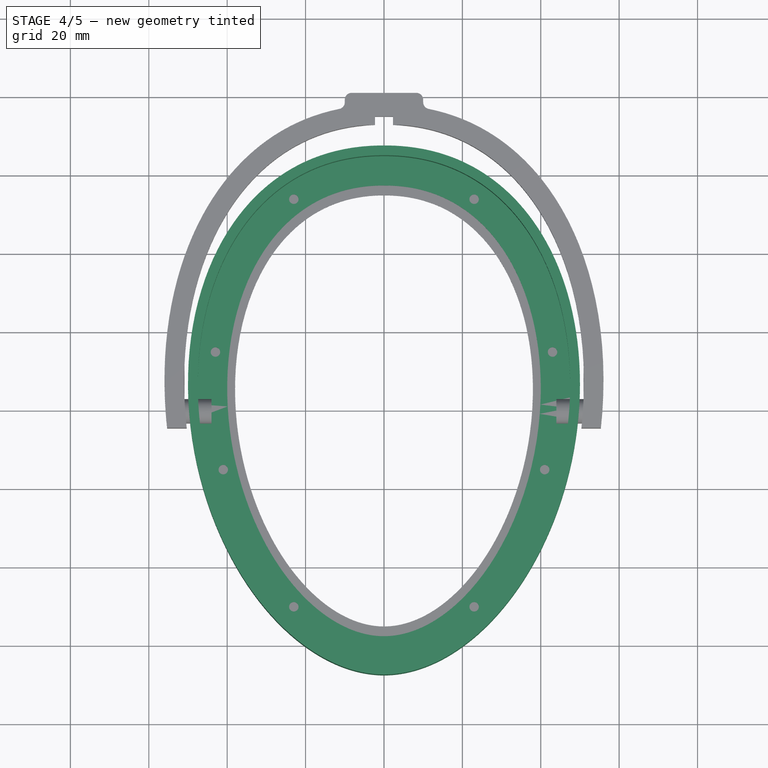
[diagram: stage 4 of 5 — top view after this stage's code; geometry added in this stage tinted green]
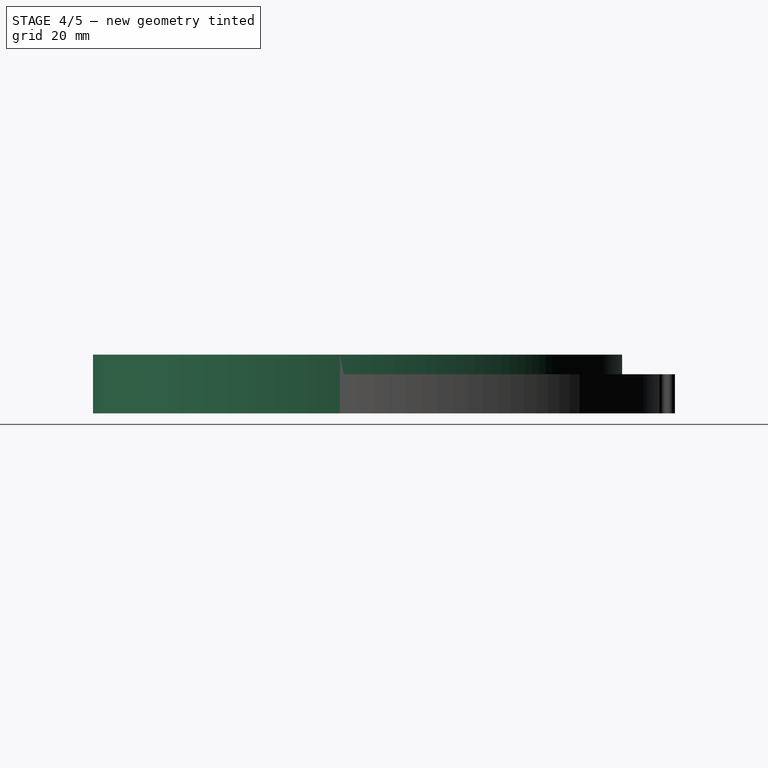
[diagram: stage 4 of 5 — right view after this stage's code; geometry added in this stage tinted green]
FEATURE [Sketcher::SketchObject] Sketch
  ArcFitTolerance = 1e-06
  AttachmentSupport = -> [XY_Plane]
  FullyConstrained = false
  MakeInternals = false
  MapMode = 5
  sketch-geometry (38):
    g0: BSplineCurve PolesCount=11 KnotsCount=3 Degree=5 IsPeriodic=0
    g1: LineSegment [constr] StartX=-2.20587e-05 StartY=-67.5 StartZ=0 EndX=2.20587e-05 EndY=67.5 EndZ=0
    g2: LineSegment [constr] StartX=50 StartY=-1.63397e-05 StartZ=0 EndX=-50 EndY=1.63397e-05 EndZ=0
    g3: GeomPoint [constr] X=-1.48188e-05 Y=-45.3459 Z=0
    g4: GeomPoint [constr] X=1.48188e-05 Y=45.3459 Z=0
    g5: BSplineCurve PolesCount=11 KnotsCount=3 Degree=5 IsPeriodic=0
    g6: LineSegment [constr] StartX=-1.87907e-05 StartY=-57.5 StartZ=0 EndX=1.87907e-05 EndY=57.5 EndZ=0
    g7: LineSegment [constr] StartX=40 StartY=-1.30718e-05 StartZ=0 EndX=-40 EndY=1.30718e-05 EndZ=0
    g8: GeomPoint [constr] X=-1.34988e-05 Y=-41.3068 Z=0
    g9: GeomPoint [constr] X=1.34988e-05 Y=41.3068 Z=0
    g10-g16: Circle [constr] x7 (B-spline internal-alignment scaffolding for g5; pole/knot coordinates omitted)
    g17: GeomPoint [constr] X=-1.87907e-05 Y=-57.5 Z=0
    g18: GeomPoint [constr] X=1.87907e-05 Y=57.5 Z=0
    g19: GeomPoint [constr] X=-1.87907e-05 Y=-57.5 Z=0
    g20-g23: Circle [constr] x4 (B-spline internal-alignment scaffolding for g5; pole/knot coordinates omitted)
    g24-g30: Circle [constr] x7 (B-spline internal-alignment scaffolding for g0; pole/knot coordinates omitted)
    g31: GeomPoint [constr] X=-2.20587e-05 Y=-67.5 Z=0
    g32: GeomPoint [constr] X=2.20587e-05 Y=67.5 Z=0
    g33: GeomPoint [constr] X=-2.20587e-05 Y=-67.5 Z=0
    g34-g37: Circle [constr] x4 (B-spline internal-alignment scaffolding for g0; pole/knot coordinates omitted)
  constraints (12):
    c: Angle(g1) = 1.5708
    c: Angle(g6) = 1.5708
    c: InternalAlignment(g10-g23 -> g5) x14
    c: InternalAlignment(g24-g37 -> g0) x14
    c: DistanceY(g12,g21) = 0
    c: DistanceY(g13,g20) = 0
    c: DistanceY(g-1,g20) = 40.25
    c: DistanceY(g21,g-1) = 17.25
    c: DistanceY(g26,g35) = 0
    c: DistanceY(g27,g34) = 0
    c: DistanceY(g-1,g34) = 47.25
    c: DistanceY(g35,g-1) = 20.25
FEATURE [PartDesign::Pad] Pad
  Direction = (0,0,1)
  Length = 15
  Length2 = 10
  Profile = -> Sketch
  ReferenceAxis = -> Sketch [N_Axis]
  Refine = true
  Suppressed = false
  Type = 0
FEATURE [Sketcher::SketchObject] Sketch001
  ArcFitTolerance = 1e-06
  AttachmentSupport = -> [Pad]
  FullyConstrained = false
  MakeInternals = false
  MapMode = 5
  Placement = pos=(0,0,15) rot=(0,0,1;0rad)
  sketch-geometry (19):
    g0: BSplineCurve PolesCount=11 KnotsCount=3 Degree=5 IsPeriodic=0
    g1: LineSegment [constr] StartX=-2.12417e-05 StartY=-65 StartZ=0 EndX=2.12417e-05 EndY=65 EndZ=0
    g2: LineSegment [constr] StartX=47.5 StartY=-1.55228e-05 StartZ=0 EndX=-47.5 EndY=1.55228e-05 EndZ=0
    g3: GeomPoint [constr] X=-1.45001e-05 Y=-44.3706 Z=0
    g4: GeomPoint [constr] X=1.45001e-05 Y=44.3706 Z=0
    g5-g11: Circle [constr] x7 (B-spline internal-alignment scaffolding for g0; pole/knot coordinates omitted)
    g12: GeomPoint [constr] X=-2.12417e-05 Y=-65 Z=0
    g13: GeomPoint [constr] X=2.12417e-05 Y=65 Z=0
    g14: GeomPoint [constr] X=-2.12417e-05 Y=-65 Z=0
    g15-g18: Circle [constr] x4 (B-spline internal-alignment scaffolding for g0; pole/knot coordinates omitted)
  constraints (6):
    c: Angle(g1) = 1.5708
    c: InternalAlignment(g5-g18 -> g0) x14
    c: DistanceY(g8,g15) = 0
    c: DistanceY(g7,g16) = 0
    c: DistanceY(g16,g-1) = 19.5
    c: DistanceY(g-1,g15) = 45.5
FEATURE [PartDesign::Pocket] Pocket
  BaseFeature = -> Pad
  Direction = (0,0,-1)
  Length = 13
  Length2 = 5
  Profile = -> Sketch001
  ReferenceAxis = -> Sketch001 [N_Axis]
  Refine = true
  Suppressed = false
  Type = 0
FEATURE [App::Link] Link  label="LINK - PCB Stator"
  LinkPlacement = pos=(0,0,7) rot=(0,1,0;3.14159rad)
  LinkedObject = -> Body003
  Placement = pos=(0,0,7) rot=(0,1,0;3.14159rad)
FEATURE [Sketcher::SketchObject] Sketch002
  ArcFitTolerance = 1e-06
  AttachmentSupport = -> [Pocket]
  FullyConstrained = true
  MakeInternals = false
  MapMode = 5
  Placement = pos=(0,0,2) rot=(0,0,1;0rad)
  sketch-geometry (8):
    g0: Circle CenterX=-41 CenterY=-15 CenterZ=0 NormalX=0 NormalY=0 NormalZ=1 AngleXU=0 Radius=1.5
    g1: Circle CenterX=41 CenterY=-15 CenterZ=0 NormalX=0 NormalY=0 NormalZ=1 AngleXU=0 Radius=1.5
    g2: Circle CenterX=-23 CenterY=-50 CenterZ=0 NormalX=0 NormalY=0 NormalZ=1 AngleXU=0 Radius=1.5
    g3: Circle CenterX=23 CenterY=-50 CenterZ=0 NormalX=0 NormalY=0 NormalZ=1 AngleXU=0 Radius=1.5
    g4: Circle CenterX=-43 CenterY=15 CenterZ=0 NormalX=0 NormalY=0 NormalZ=1 AngleXU=0 Radius=1.5
    g5: Circle CenterX=43 CenterY=15 CenterZ=0 NormalX=0 NormalY=0 NormalZ=1 AngleXU=0 Radius=1.5
    g6: Circle CenterX=-23 CenterY=54 CenterZ=0 NormalX=0 NormalY=0 NormalZ=1 AngleXU=0 Radius=1.5
    g7: Circle CenterX=23 CenterY=54 CenterZ=0 NormalX=0 NormalY=0 NormalZ=1 AngleXU=0 Radius=1.5
  constraints (24):
    c: Diameter(g0) = 3
    c: Diameter(g1) = 3
    c: Diameter(g2) = 3
    c: Diameter(g3) = 3
    c: Diameter(g4) = 3
    c: Diameter(g5) = 3
    c: Diameter(g6) = 3
    c: Diameter(g7) = 3
    c: DistanceY(g-1,g4) = 15
    c: DistanceY(g0,g-1) = 15
    c: DistanceX(g0,g-1) = 41
    c: DistanceX(g-1,g1) = 41
    c: DistanceY(g0,g1) = 0
    c: DistanceY(g4,g5) = 0
    c: DistanceX(g4,g-1) = 43
    c: DistanceX(g-1,g5) = 43
    c: DistanceY(g3,g2) = 0
    c: DistanceX(g2,g-1) = 23
    c: DistanceY(g2,g-1) = 50
    c: DistanceX(g-1,g3) = 23
    c: DistanceY(g6,g7) = 0
    c: DistanceY(g-1,g6) = 54
    c: DistanceX(g6,g-1) = 23
    c: DistanceX(g-1,g7) = 23
FEATURE [PartDesign::Hole] Hole
  BaseFeature = -> Pocket
  CustomThreadClearance = 0
  Depth = 25
  DepthType = 0
  Diameter = 2.4
  DrillForDepth = false
  DrillPoint = 1
  DrillPointAngle = 118
  HoleCutCountersinkAngle = 90
  HoleCutCustomValues = false
  HoleCutDepth = 0
  HoleCutDiameter = 6.1
  HoleCutType = 0
  ModelThread = false
  Profile = -> Sketch002
  Refine = true
  Suppressed = false
  Tapered = false
  TaperedAngle = 90
  ThreadClass = 0
  ThreadDepth = 25
  ThreadDepthType = 0
  ThreadDirection = 0
  ThreadFit = 0
  ThreadSize = 0
  ThreadType = 0
  Threaded = false
  UseCustomThreadClearance = false
FEATURE [PartDesign::Body] Body  label="Earcup"
  AllowCompound = false
  Group = -> [Sketch,Pad,Sketch001,Pocket,Sketch002,Hole,DatumPlane,Sketch003,Pocket001,Sketch020,Pocket009]
  Origin = -> Origin
  Tip = -> Pocket009
FEATURE [PartDesign::Fillet] Fillet
  Base = -> Pocket008 [Edge36,Edge15,Edge41,Edge58]
  BaseFeature = -> Pocket008
  Radius = 1.75
  Refine = true
  SupportTransform = false
  Suppressed = false
  UseAllEdges = false
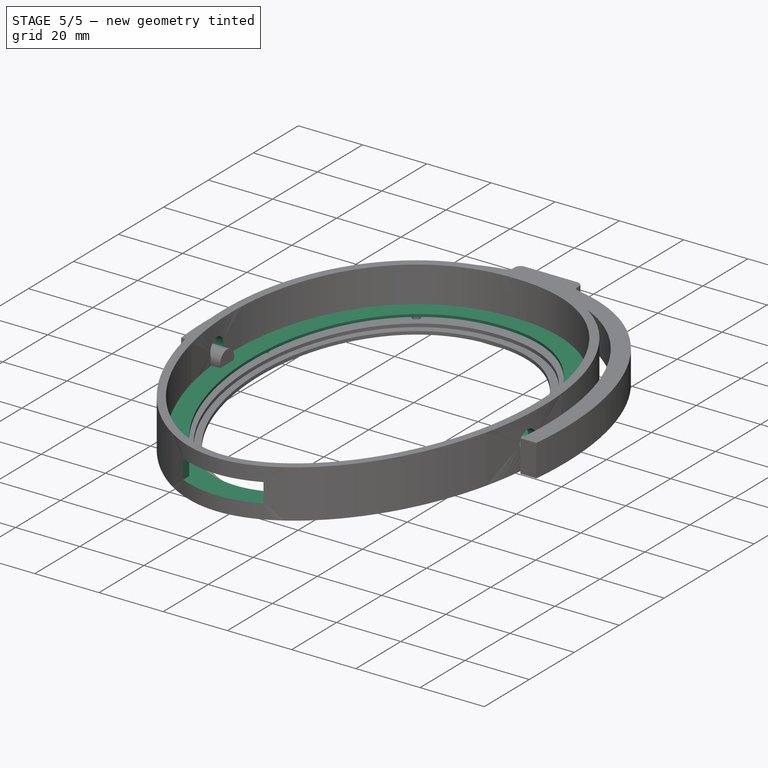
[diagram: stage 5 of 5 — iso view after this stage's code; geometry added in this stage tinted green]
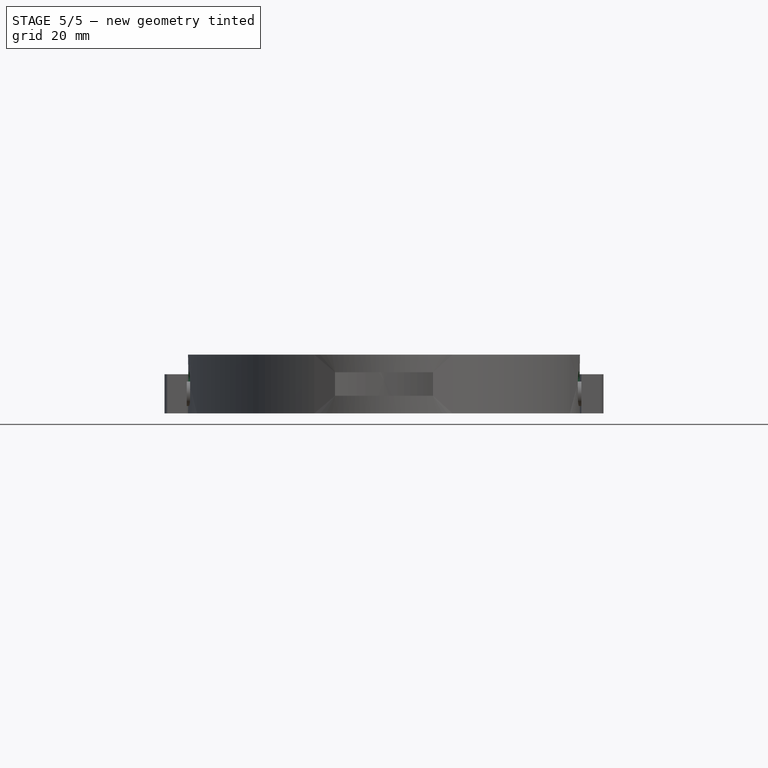
[diagram: stage 5 of 5 — front view after this stage's code; geometry added in this stage tinted green]
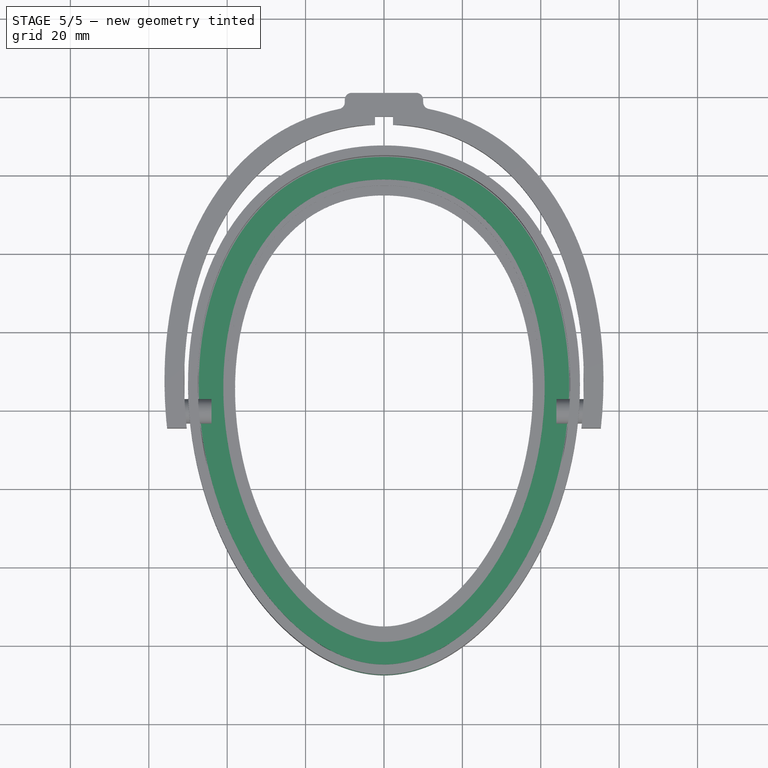
[diagram: stage 5 of 5 — top view after this stage's code; geometry added in this stage tinted green]
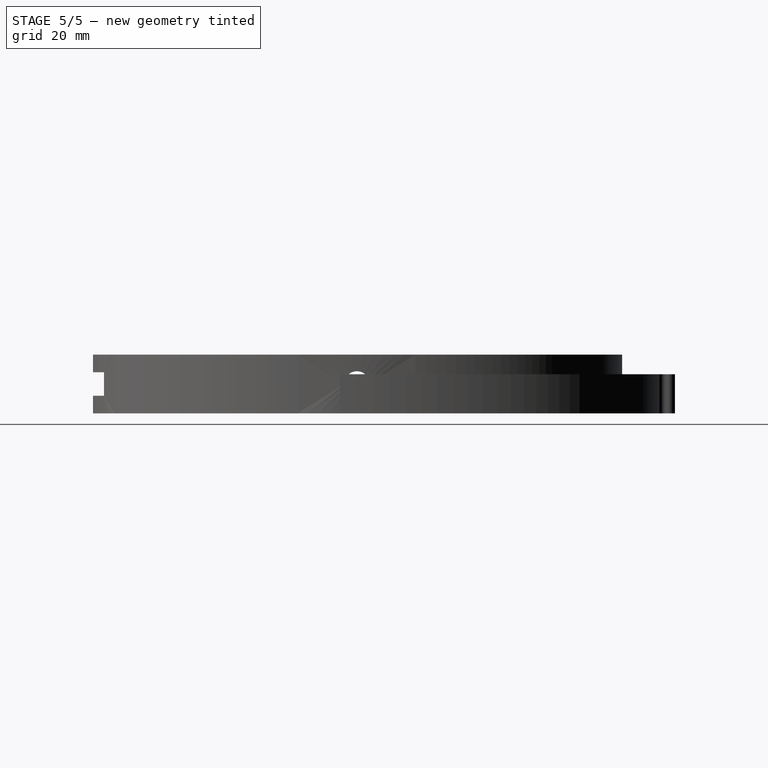
[diagram: stage 5 of 5 — right view after this stage's code; geometry added in this stage tinted green]
FEATURE [Sketcher::SketchObject] Sketch008
  ArcFitTolerance = 1e-06
  AttachmentSupport = -> [XY_Plane002]
  FullyConstrained = false
  MakeInternals = false
  MapMode = 5
  sketch-geometry (53):
    g0: LineSegment [constr] StartX=-2.14051e-05 StartY=-65.5 StartZ=0 EndX=2.14051e-05 EndY=65.5 EndZ=0
    g1: LineSegment [constr] StartX=47.5 StartY=-1.55228e-05 StartZ=0 EndX=-47.5 EndY=1.55228e-05 EndZ=0
    g2: GeomPoint [constr] X=-1.47384e-05 Y=-45.0999 Z=0
    g3: GeomPoint [constr] X=1.47384e-05 Y=45.0999 Z=0
    g4: LineSegment [constr] StartX=2.1e-05 StartY=63 StartZ=0 EndX=-2.1e-05 EndY=-63 EndZ=0
    g5: LineSegment [constr] StartX=-45 StartY=1.5e-05 StartZ=0 EndX=45 EndY=-1.5e-05 EndZ=0
    g6: GeomPoint [constr] X=1.46969e-05 Y=44.0908 Z=0
    g7: GeomPoint [constr] X=-1.46969e-05 Y=-44.0908 Z=0
    g8: LineSegment [constr] StartX=-0.00800725 StartY=-58.5 StartZ=0 EndX=-0.00796885 EndY=59 EndZ=0
    g9: GeomPoint [constr] X=-1.37952e-05 Y=-42.2137 Z=0
    g10: GeomPoint [constr] X=1.37952e-05 Y=42.2137 Z=0
    g11: BSplineCurve PolesCount=11 KnotsCount=3 Degree=5 IsPeriodic=0
    g12: LineSegment [constr] StartX=-1.92809e-05 StartY=-59 StartZ=0 EndX=1.92809e-05 EndY=59 EndZ=0
    g13: LineSegment [constr] StartX=41 StartY=-1.33986e-05 StartZ=0 EndX=-41 EndY=1.33986e-05 EndZ=0
    g14: GeomPoint [constr] X=-1.38647e-05 Y=-42.4264 Z=0
    g15: GeomPoint [constr] X=1.38647e-05 Y=42.4264 Z=0
    g16-g22: Circle [constr] x7 (B-spline internal-alignment scaffolding for g11; pole/knot coordinates omitted)
    g23: GeomPoint [constr] X=-1.92809e-05 Y=-59 Z=0
    g24: GeomPoint [constr] X=1.92809e-05 Y=59 Z=0
    g25: GeomPoint [constr] X=-1.92809e-05 Y=-59 Z=0
    g26-g29: Circle [constr] x4 (B-spline internal-alignment scaffolding for g11; pole/knot coordinates omitted)
    g30: LineSegment [constr] StartX=-2.10783e-05 StartY=-64.5 StartZ=0 EndX=2.10783e-05 EndY=64.5 EndZ=0
    g31: LineSegment [constr] StartX=47 StartY=-1.53594e-05 StartZ=0 EndX=-47 EndY=1.53594e-05 EndZ=0
    g32: GeomPoint [constr] X=-1.44355e-05 Y=-44.173 Z=0
    g33: GeomPoint [constr] X=1.44355e-05 Y=44.173 Z=0
    g34: BSplineCurve PolesCount=11 KnotsCount=3 Degree=5 IsPeriodic=0
    g35: LineSegment [constr] StartX=2.1e-05 StartY=64.75 StartZ=0 EndX=-2.1e-05 EndY=-64.75 EndZ=0
    g36: LineSegment [constr] StartX=-47.25 StartY=1.53243e-05 StartZ=0 EndX=47.25 EndY=-1.53243e-05 EndZ=0
    g37: GeomPoint [constr] X=1.43584e-05 Y=44.2719 Z=0
    g38: GeomPoint [constr] X=-1.43584e-05 Y=-44.2719 Z=0
    g39-g45: Circle [constr] x7 (B-spline internal-alignment scaffolding for g34; pole/knot coordinates omitted)
    g46: GeomPoint [constr] X=2.1e-05 Y=64.75 Z=0
    g47: GeomPoint [constr] X=-2.1e-05 Y=-64.75 Z=0
    g48: GeomPoint [constr] X=2.1e-05 Y=64.75 Z=0
    g49-g52: Circle [constr] x4 (B-spline internal-alignment scaffolding for g34; pole/knot coordinates omitted)
  constraints (14):
    c: Angle(g0) = 1.5708
    c: Angle(g8) = 1.5708
    c: Angle(g12) = 1.5708
    c: InternalAlignment(g16-g29 -> g11) x14
    c: DistanceY(g19,g26) = 0
    c: DistanceY(g18,g27) = 0
    c: DistanceY(g27,g-1) = 17.7
    c: DistanceY(g-1,g26) = 41.3
    c: Angle(g30) = 1.5708
    c: InternalAlignment(g39-g52 -> g34) x14
    c: DistanceY(g50,g41) = 0
    c: DistanceY(g49,g42) = 0
    c: DistanceY(g42,g-1) = 19.422
    c: DistanceY(g-1,g41) = 45.318
FEATURE [PartDesign::Pad] Pad003
  Direction = (0,0,1)
  Length = 4
  Length2 = 10
  Profile = -> Sketch008
  ReferenceAxis = -> Sketch008 [N_Axis]
  Refine = true
  Suppressed = false
  Type = 0
FEATURE [Sketcher::SketchObject] Sketch009
  ArcFitTolerance = 1e-06
  AttachmentOffset = pos=(0,0,0) rot=(0,0,1;3.14159rad)
  AttachmentSupport = -> [Pad003]
  FullyConstrained = false
  MakeInternals = false
  MapMode = 5
  Placement = pos=(0,0,0) rot=(0,-1,0;3.14159rad)
  sketch-geometry (19):
    g0: BSplineCurve PolesCount=11 KnotsCount=3 Degree=5 IsPeriodic=0
    g1: LineSegment [constr] StartX=-2.05881e-05 StartY=-63 StartZ=0 EndX=2.05881e-05 EndY=63 EndZ=0
    g2: LineSegment [constr] StartX=45 StartY=-1.47058e-05 StartZ=0 EndX=-45 EndY=1.47058e-05 EndZ=0
    g3: GeomPoint [constr] X=-1.44087e-05 Y=-44.0908 Z=0
    g4: GeomPoint [constr] X=1.44087e-05 Y=44.0908 Z=0
    g5-g11: Circle [constr] x7 (B-spline internal-alignment scaffolding for g0; pole/knot coordinates omitted)
    g12: GeomPoint [constr] X=-2.05881e-05 Y=-63 Z=0
    g13: GeomPoint [constr] X=2.05881e-05 Y=63 Z=0
    g14: GeomPoint [constr] X=-2.05881e-05 Y=-63 Z=0
    g15-g18: Circle [constr] x4 (B-spline internal-alignment scaffolding for g0; pole/knot coordinates omitted)
  constraints (6):
    c: Angle(g1) = 1.5708
    c: InternalAlignment(g5-g18 -> g0) x14
    c: DistanceY(g8,g15) = 0
    c: DistanceY(g7,g16) = 0
    c: DistanceY(g16,g-1) = 18.9
    c: DistanceY(g-1,g15) = 44.1
FEATURE [PartDesign::Pocket] Pocket004
  BaseFeature = -> Pad003
  Direction = (0,0,1)
  Length = 3.2
  Length2 = 5
  Profile = -> Sketch009
  ReferenceAxis = -> Sketch009 [N_Axis]
  Refine = true
  Suppressed = false
  Type = 0
FEATURE [PartDesign::Plane] DatumPlane
  AttachmentOffset = pos=(53,0,0) rot=(0,1,0;1.5708rad)
  AttachmentSupport = -> [Hole]
  Length = 66.4317
  MapMode = 45
  Placement = pos=(53,1.83922,7.5) rot=(0,0.999576,0;1.5708rad)
  ResizeMode = 0
  Width = 151.432
FEATURE [Sketcher::SketchObject] Sketch003
  ArcFitTolerance = 1e-06
  AttachmentSupport = -> [DatumPlane]
  FullyConstrained = true
  MakeInternals = false
  MapMode = 5
  Placement = pos=(53,1.83922,7.5) rot=(0,1,0;1.5708rad)
  sketch-geometry (2):
    g0: Circle CenterX=0 CenterY=-2 CenterZ=0 NormalX=0 NormalY=0 NormalZ=1 AngleXU=0 Radius=3.25
    g1: Circle CenterX=1.75 CenterY=-0.25 CenterZ=0 NormalX=0 NormalY=0 NormalZ=1 AngleXU=0 Radius=1.75
  constraints (6):
    c: Diameter(g0) = 6.5
    c: Diameter(g1) = 3.5
    c: DistanceY(g0,g1) = 1.75
    c: DistanceX(g0,g1) = 1.75
    c: DistanceY(g0,g-1) = 2
    c: DistanceX(g0,g-1) = 0
FEATURE [PartDesign::Pocket] Pocket001
  BaseFeature = -> Hole
  Direction = (-1,5.49295e-07,-1e-16)
  Length = 5
  Length2 = 5
  Profile = -> Sketch003
  ReferenceAxis = -> Sketch003 [N_Axis]
  Refine = true
  Suppressed = false
  Type = 1
FEATURE [Sketcher::SketchObject] Sketch020
  ArcFitTolerance = 1e-06
  AttachmentOffset = pos=(0,0,68) rot=(0,0,1;0rad)
  AttachmentSupport = -> [XZ_Plane]
  FullyConstrained = true
  MakeInternals = false
  MapMode = 5
  Placement = pos=(0,-68,1.51e-14) rot=(1,0,0;1.5708rad)
  sketch-geometry (5):
    g0: LineSegment StartX=-12.5 StartY=4.5 StartZ=0 EndX=12.5 EndY=4.5 EndZ=0
    g1: LineSegment StartX=12.5 StartY=4.5 StartZ=0 EndX=12.5 EndY=10.5 EndZ=0
    g2: LineSegment StartX=12.5 StartY=10.5 StartZ=0 EndX=-12.5 EndY=10.5 EndZ=0
    g3: LineSegment StartX=-12.5 StartY=10.5 StartZ=0 EndX=-12.5 EndY=4.5 EndZ=0
    g4: GeomPoint [constr] X=0 Y=7.5 Z=0
  constraints (13):
    c: Coincident(g0,g1)
    c: Coincident(g1,g2)
    c: Coincident(g2,g3)
    c: Coincident(g3,g0)
    c: Horizontal(g0)
    c: Horizontal(g2)
    c: Vertical(g1)
    c: Vertical(g3)
    c: Symmetric(g2,g0,g4)
    c: Distance(g1,g3) = 25
    c: Distance(g0,g2) = 6
    c: PointOnObject(g4,g-2)
    c: DistanceY(g-1,g4) = 7.5
FEATURE [PartDesign::Pocket] Pocket009
  BaseFeature = -> Pocket001
  Direction = (0,1,-2e-16)
  Length = 10
  Length2 = 5
  Profile = -> Sketch020
  ReferenceAxis = -> Sketch020 [N_Axis]
  Refine = true
  Suppressed = false
  Type = 0
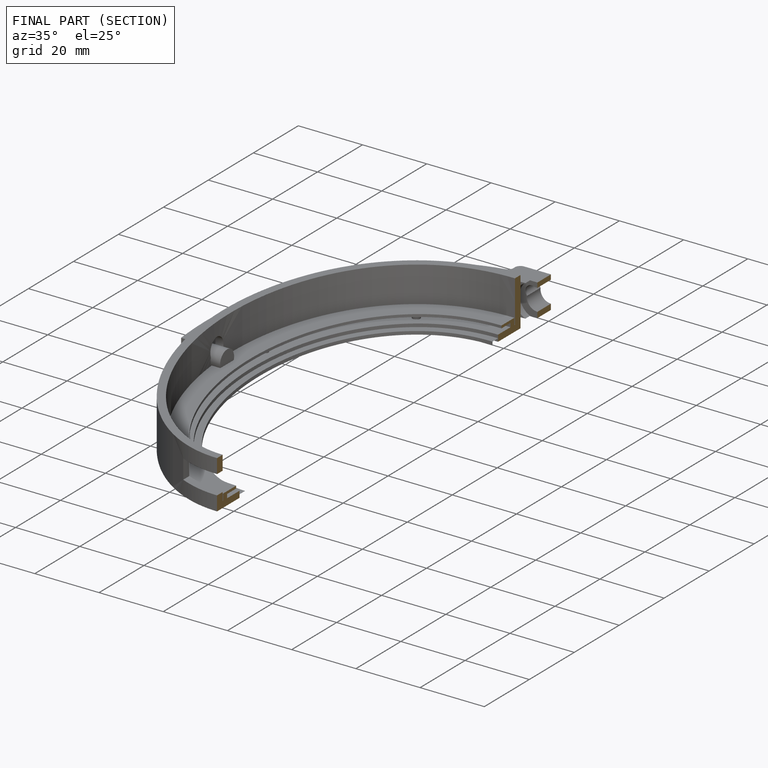
[diagram: finished part — half-section view (interior)]
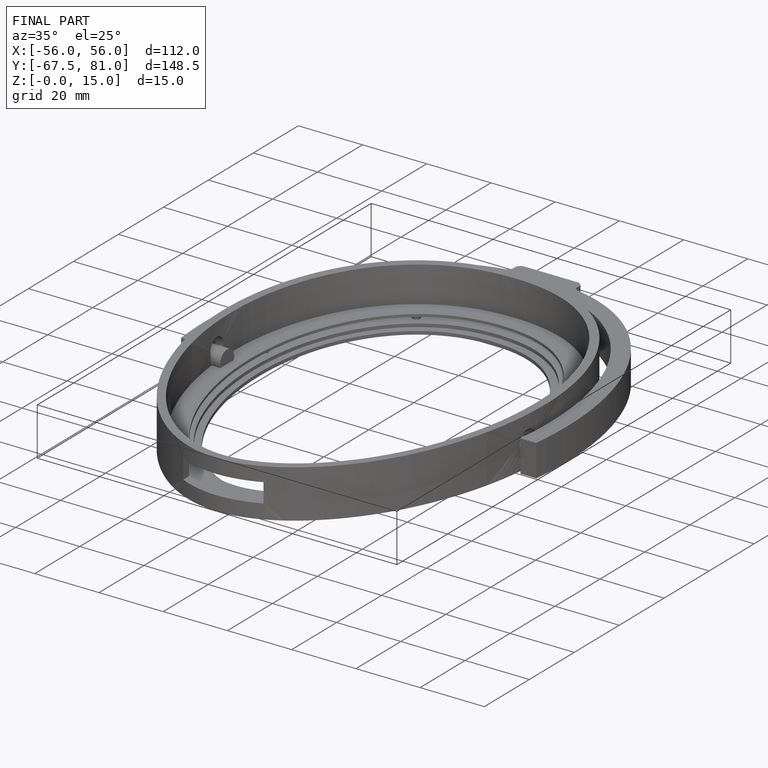
[diagram: finished part — iso view with bounding-box wireframe]
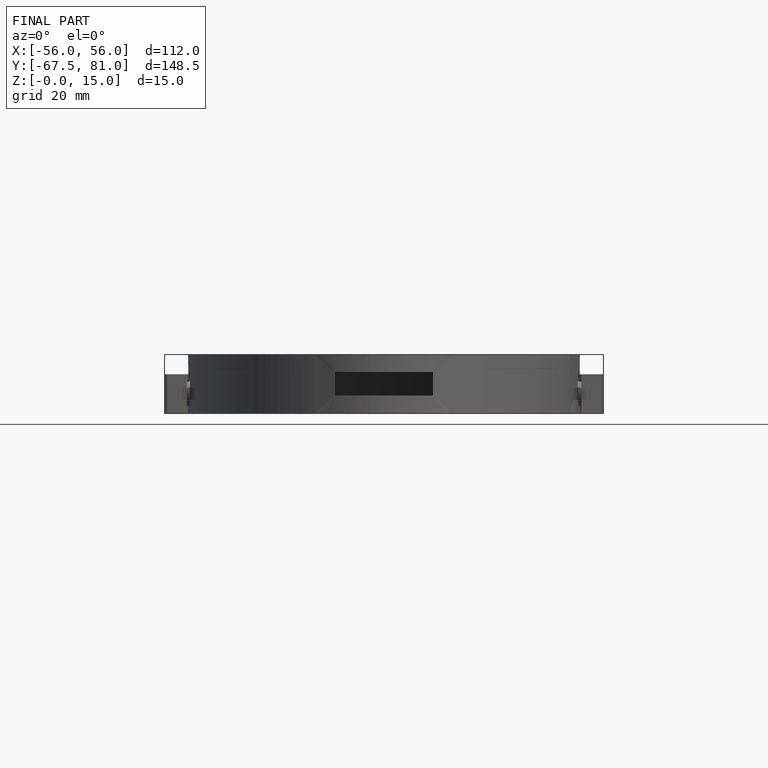
[diagram: finished part — front view with bounding-box wireframe]
